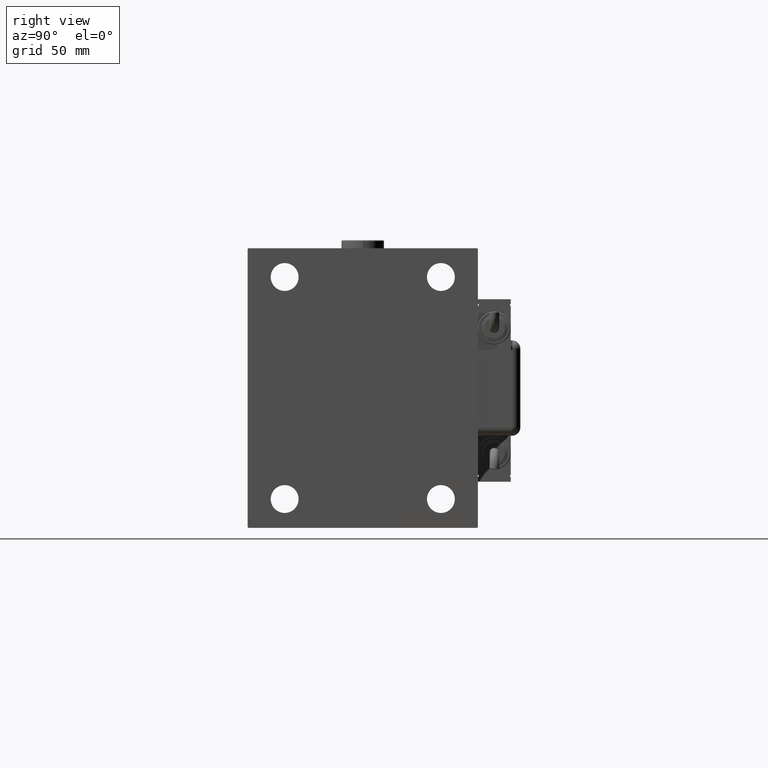
[diagram: clean part render]
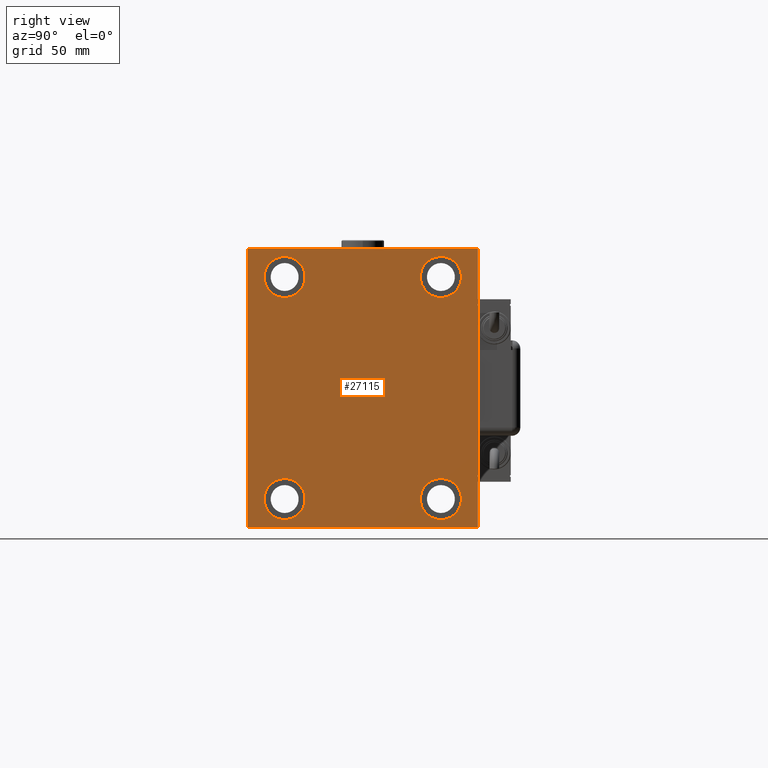
[diagram: same view with one face highlighted and labeled with its STEP entity id]
A machine part, right view. The second image highlights one B-rep face of the part: STEP entity #27115.
In plain terms, the highlighted planar face has unit normal (1, 0, 0).
Its self-contained STEP definition (entity closure, byte-faithful):
#129 = CIRCLE ( 'NONE', #37666, 12.50000000000001066 ) ;
#985 = CARTESIAN_POINT ( 'NONE',  ( 255.0000000000000000, -47.49999999999999289, -67.50000000000000000 ) ) ;
#1013 = CARTESIAN_POINT ( 'NONE',  ( 255.0000000000000000, -47.49999999999999289, -55.00000000000000711 ) ) ;
#1025 = EDGE_LOOP ( 'NONE', ( #24400, #38070 ) ) ;
#1077 = CARTESIAN_POINT ( 'NONE',  ( 255.0000000000000000, 47.50000000000000711, 80.00000000000001421 ) ) ;
#1294 = CIRCLE ( 'NONE', #39828, 12.49999999999999645 ) ;
#1639 = LINE ( 'NONE', #41311, #2376 ) ;
#2218 = CARTESIAN_POINT ( 'NONE',  ( 255.0000000000000000, -69.99999999999998579, 84.99999999999998579 ) ) ;
#2376 = VECTOR ( 'NONE', #60966, 1000.000000000000114 ) ;
#2429 = VERTEX_POINT ( 'NONE', #61830 ) ;
#2690 = CARTESIAN_POINT ( 'NONE',  ( 255.0000000000000000, 47.50000000000000711, 67.50000000000000000 ) ) ;
#2854 = CARTESIAN_POINT ( 'NONE',  ( 255.0000000000000000, 47.50000000000000711, -67.50000000000000000 ) ) ;
#2947 = EDGE_CURVE ( 'NONE', #26292, #40024, #129, .T. ) ;
#2977 = FACE_BOUND ( 'NONE', #41474, .T. ) ;
#3489 = ORIENTED_EDGE ( 'NONE', *, *, #56867, .T. ) ;
#3541 = VECTOR ( 'NONE', #39155, 1000.000000000000114 ) ;
#4360 = DIRECTION ( 'NONE',  ( 0.000000000000000000, 0.000000000000000000, 1.000000000000000000 ) ) ;
#4636 = ORIENTED_EDGE ( 'NONE', *, *, #39250, .T. ) ;
#5350 = CARTESIAN_POINT ( 'NONE',  ( 255.0000000000000000, -47.49999999999997868, 80.00000000000001421 ) ) ;
#7023 = EDGE_CURVE ( 'NONE', #17713, #58896, #51092, .T. ) ;
#7421 = FACE_OUTER_BOUND ( 'NONE', #46964, .T. ) ;
#8264 = CARTESIAN_POINT ( 'NONE',  ( 255.0000000000000000, 70.00000000000001421, 85.00000000000000000 ) ) ;
#8361 = DIRECTION ( 'NONE',  ( -1.000000000000000000, -0.000000000000000000, -0.000000000000000000 ) ) ;
#8667 = CIRCLE ( 'NONE', #33044, 12.50000000000001066 ) ;
#9365 = EDGE_CURVE ( 'NONE', #56412, #2429, #56044, .T. ) ;
#9859 = ORIENTED_EDGE ( 'NONE', *, *, #22250, .T. ) ;
#10869 = VECTOR ( 'NONE', #51869, 1000.000000000000000 ) ;
#12018 = CIRCLE ( 'NONE', #53587, 12.49999999999999645 ) ;
#12260 = EDGE_CURVE ( 'NONE', #59469, #42213, #59083, .T. ) ;
#13693 = ORIENTED_EDGE ( 'NONE', *, *, #18575, .T. ) ;
#13861 = EDGE_LOOP ( 'NONE', ( #60985, #44949 ) ) ;
#14433 = DIRECTION ( 'NONE',  ( 0.000000000000000000, 1.000000000000000000, 9.912705577010325549E-17 ) ) ;
#14935 = AXIS2_PLACEMENT_3D ( 'NONE', #50630, #17269, #36969 ) ;
#15268 = DIRECTION ( 'NONE',  ( -1.000000000000000000, -0.000000000000000000, -0.000000000000000000 ) ) ;
#17269 = DIRECTION ( 'NONE',  ( 1.000000000000000000, 0.000000000000000000, 0.000000000000000000 ) ) ;
#17333 = VERTEX_POINT ( 'NONE', #52964 ) ;
#17713 = VERTEX_POINT ( 'NONE', #22899 ) ;
#17744 = DIRECTION ( 'NONE',  ( 0.000000000000000000, 0.000000000000000000, -1.000000000000000000 ) ) ;
#18575 = EDGE_CURVE ( 'NONE', #46722, #17713, #26518, .T. ) ;
#18651 = CARTESIAN_POINT ( 'NONE',  ( 255.0000000000000000, -47.49999999999999289, -67.50000000000000000 ) ) ;
#18667 = EDGE_CURVE ( 'NONE', #41423, #41265, #8667, .T. ) ;
#19309 = ORIENTED_EDGE ( 'NONE', *, *, #18667, .T. ) ;
#19346 = CARTESIAN_POINT ( 'NONE',  ( 255.0000000000000000, 69.50000000000012790, -85.00000000000001421 ) ) ;
#19951 = AXIS2_PLACEMENT_3D ( 'NONE', #35142, #50673, #54495 ) ;
#20978 = DIRECTION ( 'NONE',  ( -1.000000000000000000, -0.000000000000000000, -0.000000000000000000 ) ) ;
#21063 = DIRECTION ( 'NONE',  ( 0.000000000000000000, 0.000000000000000000, 1.000000000000000000 ) ) ;
#22078 = ORIENTED_EDGE ( 'NONE', *, *, #9365, .T. ) ;
#22083 = CARTESIAN_POINT ( 'NONE',  ( 255.0000000000000000, -47.49999999999997868, 67.50000000000000000 ) ) ;
#22250 = EDGE_CURVE ( 'NONE', #24874, #46722, #22885, .T. ) ;
#22589 = AXIS2_PLACEMENT_3D ( 'NONE', #985, #15268, #49867 ) ;
#22699 = DIRECTION ( 'NONE',  ( -1.000000000000000000, -0.000000000000000000, -0.000000000000000000 ) ) ;
#22885 = LINE ( 'NONE', #8264, #62530 ) ;
#22899 = CARTESIAN_POINT ( 'NONE',  ( 255.0000000000000000, -69.99999999999998579, 84.50000000000001421 ) ) ;
#23969 = LINE ( 'NONE', #34439, #62520 ) ;
#24400 = ORIENTED_EDGE ( 'NONE', *, *, #57455, .T. ) ;
#24563 = VERTEX_POINT ( 'NONE', #39267 ) ;
#24874 = VERTEX_POINT ( 'NONE', #39810 ) ;
#24905 = VECTOR ( 'NONE', #59212, 1000.000000000000114 ) ;
#25158 = CARTESIAN_POINT ( 'NONE',  ( 255.0000000000000000, 77.25000000000099476, 77.24999999999884892 ) ) ;
#26292 = VERTEX_POINT ( 'NONE', #36341 ) ;
#26518 = LINE ( 'NONE', #30326, #24905 ) ;
#27114 = LINE ( 'NONE', #56958, #10869 ) ;
#27115 = ADVANCED_FACE ( 'NONE', ( #2977, #31271, #61075, #60156, #7421 ), #45559, .T. ) ;
#27714 = ORIENTED_EDGE ( 'NONE', *, *, #42256, .T. ) ;
#28090 = DIRECTION ( 'NONE',  ( 0.000000000000000000, 0.000000000000000000, 1.000000000000000000 ) ) ;
#28114 = DIRECTION ( 'NONE',  ( -0.000000000000000000, 0.7071067811865376918, 0.7071067811865574537 ) ) ;
#28826 = CARTESIAN_POINT ( 'NONE',  ( 255.0000000000000000, -69.50000000000001421, 84.99999999999998579 ) ) ;
#29468 = ORIENTED_EDGE ( 'NONE', *, *, #52859, .T. ) ;
#29843 = CARTESIAN_POINT ( 'NONE',  ( 255.0000000000000000, 47.50000000000000711, -80.00000000000000000 ) ) ;
#30326 = CARTESIAN_POINT ( 'NONE',  ( 255.0000000000000000, -77.25000000000001421, 77.25000000000001421 ) ) ;
#30732 = CARTESIAN_POINT ( 'NONE',  ( 255.0000000000000000, -69.99999999999998579, -84.50000000000004263 ) ) ;
#31271 = FACE_BOUND ( 'NONE', #44924, .T. ) ;
#31574 = EDGE_CURVE ( 'NONE', #40024, #26292, #45571, .T. ) ;
#32040 = ORIENTED_EDGE ( 'NONE', *, *, #52641, .T. ) ;
#33044 = AXIS2_PLACEMENT_3D ( 'NONE', #42364, #8361, #56001 ) ;
#33812 = VECTOR ( 'NONE', #28114, 999.9999999999998863 ) ;
#33843 = VERTEX_POINT ( 'NONE', #29843 ) ;
#34439 = CARTESIAN_POINT ( 'NONE',  ( 255.0000000000000000, -69.99999999999998579, -85.00000000000002842 ) ) ;
#35142 = CARTESIAN_POINT ( 'NONE',  ( 255.0000000000000000, 47.50000000000000711, -67.50000000000000000 ) ) ;
#35327 = LINE ( 'NONE', #25158, #3541 ) ;
#35915 = DIRECTION ( 'NONE',  ( 0.000000000000000000, 0.000000000000000000, 1.000000000000000000 ) ) ;
#36341 = CARTESIAN_POINT ( 'NONE',  ( 255.0000000000000000, 47.50000000000000711, 55.00000000000000000 ) ) ;
#36969 = DIRECTION ( 'NONE',  ( 0.000000000000000000, 0.000000000000000000, -1.000000000000000000 ) ) ;
#37198 = CIRCLE ( 'NONE', #19951, 12.49999999999999645 ) ;
#37666 = AXIS2_PLACEMENT_3D ( 'NONE', #45204, #45825, #21063 ) ;
#38070 = ORIENTED_EDGE ( 'NONE', *, *, #12260, .T. ) ;
#38425 = CIRCLE ( 'NONE', #55623, 12.50000000000001066 ) ;
#38616 = ORIENTED_EDGE ( 'NONE', *, *, #54466, .T. ) ;
#38984 = DIRECTION ( 'NONE',  ( -1.000000000000000000, -0.000000000000000000, -0.000000000000000000 ) ) ;
#39155 = DIRECTION ( 'NONE',  ( -0.000000000000000000, -0.7071067811865376918, 0.7071067811865573427 ) ) ;
#39250 = EDGE_CURVE ( 'NONE', #33843, #50448, #1294, .T. ) ;
#39267 = CARTESIAN_POINT ( 'NONE',  ( 255.0000000000000000, 70.00000000000001421, 84.50000000000001421 ) ) ;
#39810 = CARTESIAN_POINT ( 'NONE',  ( 255.0000000000000000, 69.50000000000004263, 85.00000000000000000 ) ) ;
#39828 = AXIS2_PLACEMENT_3D ( 'NONE', #2854, #20978, #35915 ) ;
#40024 = VERTEX_POINT ( 'NONE', #1077 ) ;
#40564 = ORIENTED_EDGE ( 'NONE', *, *, #48125, .T. ) ;
#40844 = DIRECTION ( 'NONE',  ( 0.000000000000000000, 0.000000000000000000, 1.000000000000000000 ) ) ;
#41265 = VERTEX_POINT ( 'NONE', #59725 ) ;
#41311 = CARTESIAN_POINT ( 'NONE',  ( 255.0000000000000000, -77.25000000000099476, -77.24999999999884892 ) ) ;
#41423 = VERTEX_POINT ( 'NONE', #5350 ) ;
#41474 = EDGE_LOOP ( 'NONE', ( #4636, #32040 ) ) ;
#42213 = VERTEX_POINT ( 'NONE', #45453 ) ;
#42256 = EDGE_CURVE ( 'NONE', #58896, #17333, #1639, .T. ) ;
#42268 = DIRECTION ( 'NONE',  ( 0.000000000000000000, -1.000000000000000000, -9.912705577010325549E-17 ) ) ;
#42364 = CARTESIAN_POINT ( 'NONE',  ( 255.0000000000000000, -47.49999999999997868, 67.50000000000000000 ) ) ;
#43787 = VECTOR ( 'NONE', #17744, 1000.000000000000000 ) ;
#44924 = EDGE_LOOP ( 'NONE', ( #3489, #19309 ) ) ;
#44949 = ORIENTED_EDGE ( 'NONE', *, *, #31574, .T. ) ;
#45204 = CARTESIAN_POINT ( 'NONE',  ( 255.0000000000000000, 47.50000000000000711, 67.50000000000000000 ) ) ;
#45453 = CARTESIAN_POINT ( 'NONE',  ( 255.0000000000000000, -47.49999999999999289, -80.00000000000000000 ) ) ;
#45559 = PLANE ( 'NONE',  #14935 ) ;
#45571 = CIRCLE ( 'NONE', #55709, 12.50000000000001066 ) ;
#45825 = DIRECTION ( 'NONE',  ( -1.000000000000000000, -0.000000000000000000, -0.000000000000000000 ) ) ;
#46722 = VERTEX_POINT ( 'NONE', #28826 ) ;
#46964 = EDGE_LOOP ( 'NONE', ( #9859, #13693, #55561, #27714, #29468, #22078, #38616, #40564 ) ) ;
#48125 = EDGE_CURVE ( 'NONE', #24563, #24874, #35327, .T. ) ;
#49867 = DIRECTION ( 'NONE',  ( 0.000000000000000000, 0.000000000000000000, 1.000000000000000000 ) ) ;
#50448 = VERTEX_POINT ( 'NONE', #60853 ) ;
#50630 = CARTESIAN_POINT ( 'NONE',  ( 255.0000000000000000, 0.000000000000000000, 0.000000000000000000 ) ) ;
#50673 = DIRECTION ( 'NONE',  ( -1.000000000000000000, -0.000000000000000000, -0.000000000000000000 ) ) ;
#51092 = LINE ( 'NONE', #2218, #43787 ) ;
#51869 = DIRECTION ( 'NONE',  ( 0.000000000000000000, -8.163404592832031500E-17, 1.000000000000000000 ) ) ;
#52641 = EDGE_CURVE ( 'NONE', #50448, #33843, #37198, .T. ) ;
#52859 = EDGE_CURVE ( 'NONE', #17333, #56412, #23969, .T. ) ;
#52964 = CARTESIAN_POINT ( 'NONE',  ( 255.0000000000000000, -69.50000000000001421, -85.00000000000002842 ) ) ;
#53587 = AXIS2_PLACEMENT_3D ( 'NONE', #18651, #38984, #4360 ) ;
#54466 = EDGE_CURVE ( 'NONE', #2429, #24563, #27114, .T. ) ;
#54495 = DIRECTION ( 'NONE',  ( 0.000000000000000000, 0.000000000000000000, 1.000000000000000000 ) ) ;
#55561 = ORIENTED_EDGE ( 'NONE', *, *, #7023, .T. ) ;
#55623 = AXIS2_PLACEMENT_3D ( 'NONE', #22083, #22699, #40844 ) ;
#55709 = AXIS2_PLACEMENT_3D ( 'NONE', #2690, #60790, #28090 ) ;
#56001 = DIRECTION ( 'NONE',  ( 0.000000000000000000, 0.000000000000000000, 1.000000000000000000 ) ) ;
#56044 = LINE ( 'NONE', #61123, #33812 ) ;
#56412 = VERTEX_POINT ( 'NONE', #19346 ) ;
#56867 = EDGE_CURVE ( 'NONE', #41265, #41423, #38425, .T. ) ;
#56958 = CARTESIAN_POINT ( 'NONE',  ( 255.0000000000000000, 70.00000000000002842, -85.00000000000001421 ) ) ;
#57455 = EDGE_CURVE ( 'NONE', #42213, #59469, #12018, .T. ) ;
#58896 = VERTEX_POINT ( 'NONE', #30732 ) ;
#59083 = CIRCLE ( 'NONE', #22589, 12.49999999999999645 ) ;
#59212 = DIRECTION ( 'NONE',  ( 0.000000000000000000, -0.7071067811865474617, -0.7071067811865474617 ) ) ;
#59469 = VERTEX_POINT ( 'NONE', #1013 ) ;
#59725 = CARTESIAN_POINT ( 'NONE',  ( 255.0000000000000000, -47.49999999999997868, 55.00000000000000000 ) ) ;
#60156 = FACE_BOUND ( 'NONE', #1025, .T. ) ;
#60790 = DIRECTION ( 'NONE',  ( -1.000000000000000000, -0.000000000000000000, -0.000000000000000000 ) ) ;
#60853 = CARTESIAN_POINT ( 'NONE',  ( 255.0000000000000000, 47.50000000000000711, -55.00000000000000711 ) ) ;
#60966 = DIRECTION ( 'NONE',  ( -0.000000000000000000, 0.7071067811865376918, -0.7071067811865573427 ) ) ;
#60985 = ORIENTED_EDGE ( 'NONE', *, *, #2947, .T. ) ;
#61075 = FACE_BOUND ( 'NONE', #13861, .T. ) ;
#61123 = CARTESIAN_POINT ( 'NONE',  ( 255.0000000000000000, 77.25000000000103739, -77.24999999999890576 ) ) ;
#61830 = CARTESIAN_POINT ( 'NONE',  ( 255.0000000000000000, 70.00000000000002842, -84.50000000000009948 ) ) ;
#62520 = VECTOR ( 'NONE', #14433, 1000.000000000000000 ) ;
#62530 = VECTOR ( 'NONE', #42268, 1000.000000000000000 ) ;